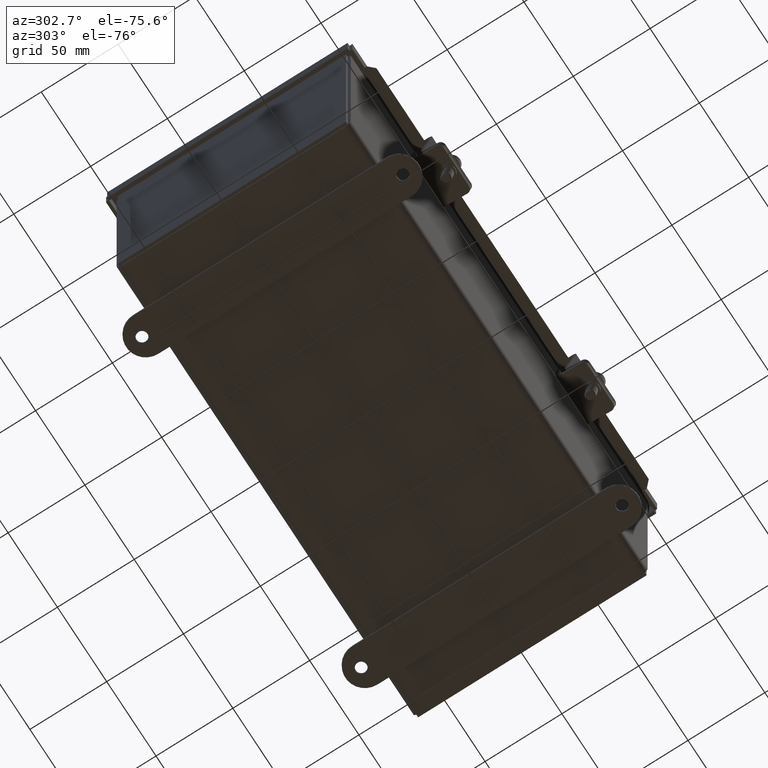
[diagram: clean part render]
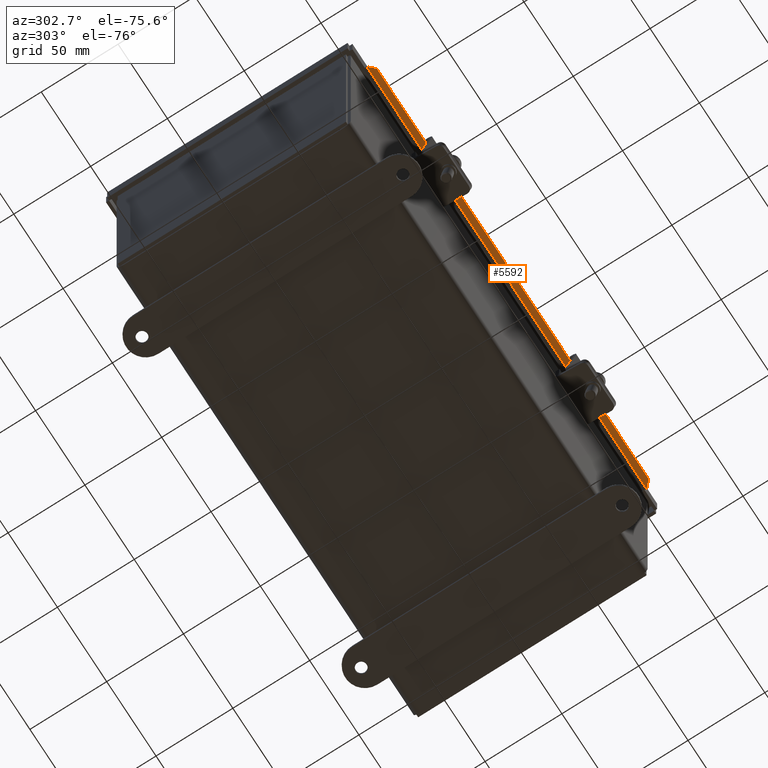
[diagram: same view with one face highlighted and labeled with its STEP entity id]
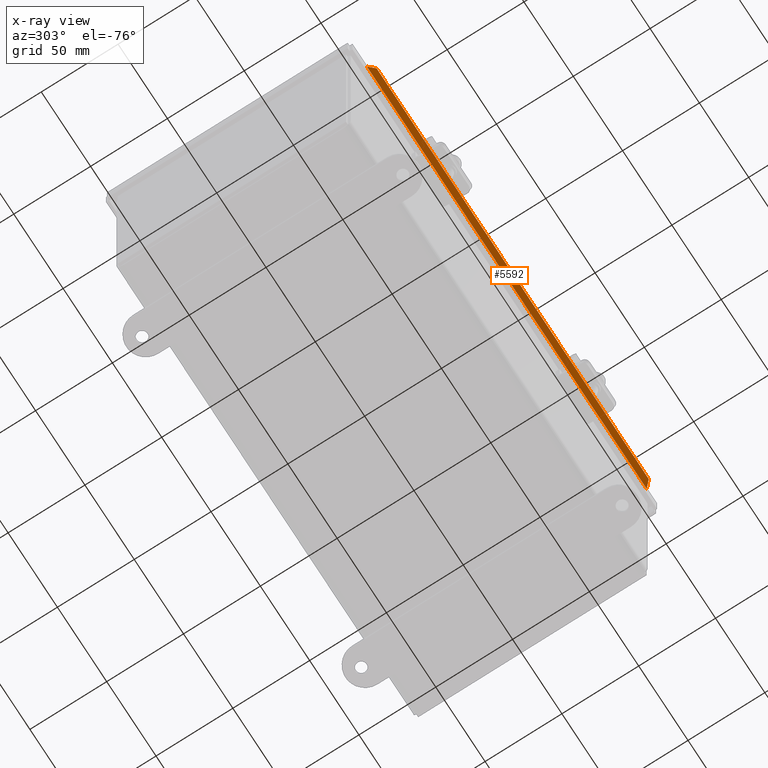
[diagram: x-ray of the same camera — body ghosted, the highlighted face saturated]
A machine part, auxiliary view. The second image highlights one B-rep face of the part: STEP entity #5592.
The next image is the same camera in x-ray: the body ghosted, the highlighted face saturated — about 0% of this face is hidden behind the body in this view.
In plain terms, the highlighted planar face has unit normal (0, 0.1736, 0.9848).
Its self-contained STEP definition (entity closure, byte-faithful):
#331=PLANE('',#6219);
#595=FACE_OUTER_BOUND('',#943,.T.);
#943=EDGE_LOOP('',(#4629,#4630,#4631,#4632,#4633,#4634));
#1602=LINE('',#8959,#2170);
#1608=LINE('',#8970,#2176);
#1613=LINE('',#8981,#2181);
#1616=LINE('',#8986,#2184);
#1617=LINE('',#8989,#2185);
#1619=LINE('',#8996,#2187);
#2170=VECTOR('',#7403,0.393700787401575);
#2176=VECTOR('',#7411,0.393700787401575);
#2181=VECTOR('',#7420,0.393700787401575);
#2184=VECTOR('',#7425,0.393700787401575);
#2185=VECTOR('',#7428,0.393700787401575);
#2187=VECTOR('',#7436,0.06381);
#2677=VERTEX_POINT('',#8957);
#2678=VERTEX_POINT('',#8958);
#2682=VERTEX_POINT('',#8968);
#2686=VERTEX_POINT('',#8980);
#2687=VERTEX_POINT('',#8984);
#2688=VERTEX_POINT('',#8988);
#3336=EDGE_CURVE('',#2677,#2678,#1602,.T.);
#3342=EDGE_CURVE('',#2682,#2677,#1608,.T.);
#3347=EDGE_CURVE('',#2686,#2682,#1613,.T.);
#3350=EDGE_CURVE('',#2687,#2686,#1616,.T.);
#3351=EDGE_CURVE('',#2687,#2688,#1617,.T.);
#3355=EDGE_CURVE('',#2678,#2688,#1619,.T.);
#4629=ORIENTED_EDGE('',*,*,#3336,.F.);
#4630=ORIENTED_EDGE('',*,*,#3342,.F.);
#4631=ORIENTED_EDGE('',*,*,#3347,.F.);
#4632=ORIENTED_EDGE('',*,*,#3350,.F.);
#4633=ORIENTED_EDGE('',*,*,#3351,.T.);
#4634=ORIENTED_EDGE('',*,*,#3355,.F.);
#5592=ADVANCED_FACE('',(#595),#331,.F.);
#6219=AXIS2_PLACEMENT_3D('',#9006,#7448,#7449);
#7403=DIRECTION('',(0.707106781186546,-0.696364240320019,0.12278780396898));
#7411=DIRECTION('',(1.,-3.70672656892857E-16,-5.63170211597166E-16));
#7420=DIRECTION('',(0.707106781186548,0.696364240320017,-0.12278780396898));
#7425=DIRECTION('',(1.59231207709185E-18,0.984807753012206,-0.173648177666941));
#7428=DIRECTION('',(1.,3.24970494797056E-17,-4.49395276914658E-16));
#7436=DIRECTION('',(1.10040017165996E-16,-0.984807753012204,0.173648177666954));
#7448=DIRECTION('center_axis',(-4.36924899450919E-16,-0.17364817766694,
-0.984807753012206));
#7449=DIRECTION('ref_axis',(-1.08644521823276E-16,0.984807753012206,-0.173648177666941));
#8957=CARTESIAN_POINT('',(11.5877928932188,6.51523097859643,0.53138692769613));
#8958=CARTESIAN_POINT('',(11.7377928932188,6.3675098156446,0.557434154346172));
#8959=CARTESIAN_POINT('',(10.3007743441578,7.78269682398227,0.30789850202813));
#8968=CARTESIAN_POINT('',(0.724707106781185,6.51523097859643,0.531386927696136));
#8970=CARTESIAN_POINT('',(0.574707106781185,6.51523097859643,0.531386927696136));
#8980=CARTESIAN_POINT('',(0.574707106781185,6.3675098156446,0.557434154346177));
#8981=CARTESIAN_POINT('',(2.01172565584224,7.78269682398227,0.307898502028133));
#8984=CARTESIAN_POINT('',(0.574707106781185,6.36202647069944,0.55840101600454));
#8986=CARTESIAN_POINT('',(0.574707106781185,6.36202647069945,0.558401016004539));
#8988=CARTESIAN_POINT('',(11.7377928932188,6.36202647069944,0.558401016004534));
#8989=CARTESIAN_POINT('',(6.15625,6.36202647069944,0.558401016004536));
#8996=CARTESIAN_POINT('',(11.7377928932188,6.16460695767991,0.59321140266821));
#9006=CARTESIAN_POINT('Origin',(6.15625,6.3837899710314,0.554563523701355));